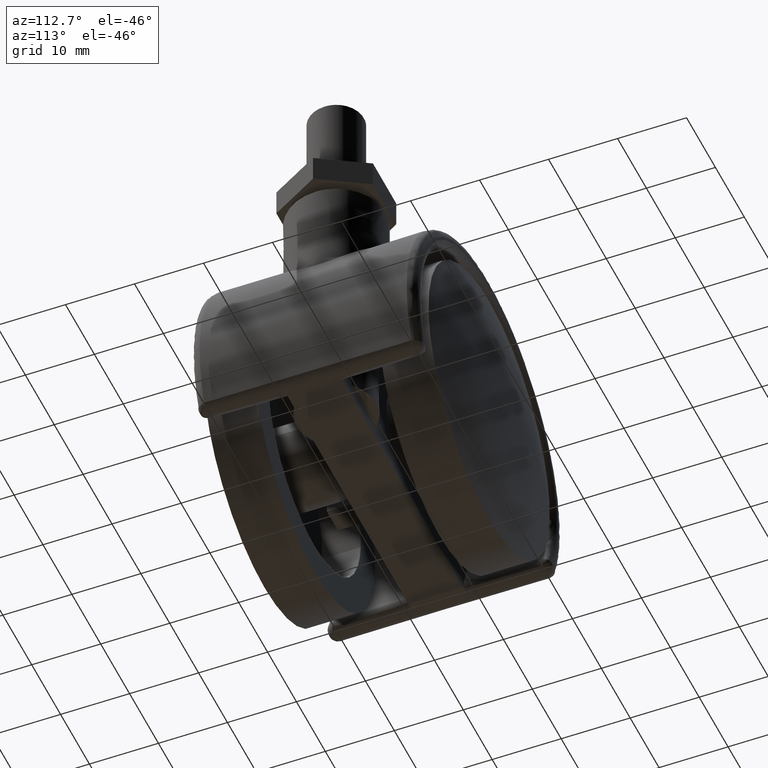
[diagram: clean part render]
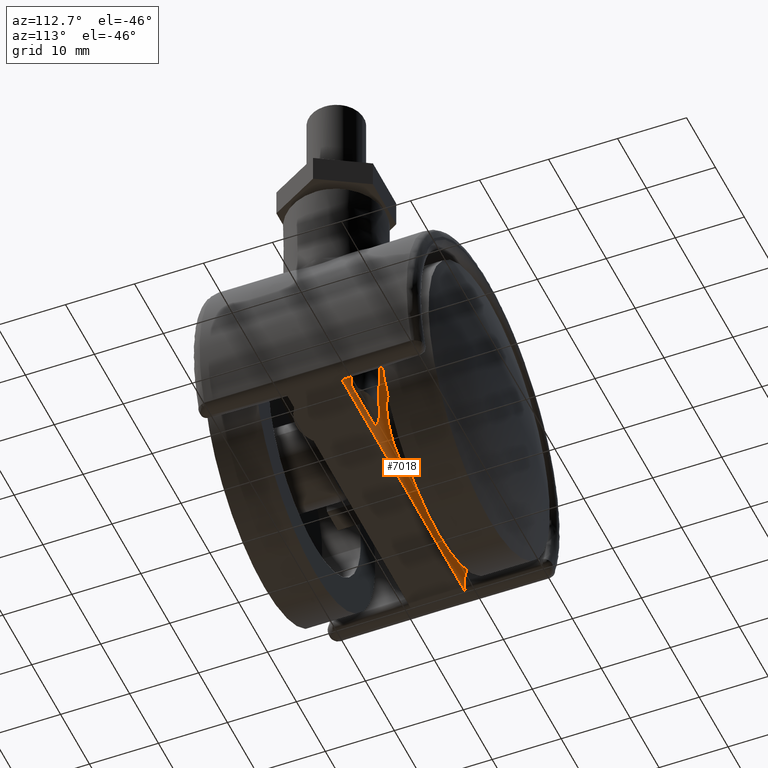
[diagram: same view with one face highlighted and labeled with its STEP entity id]
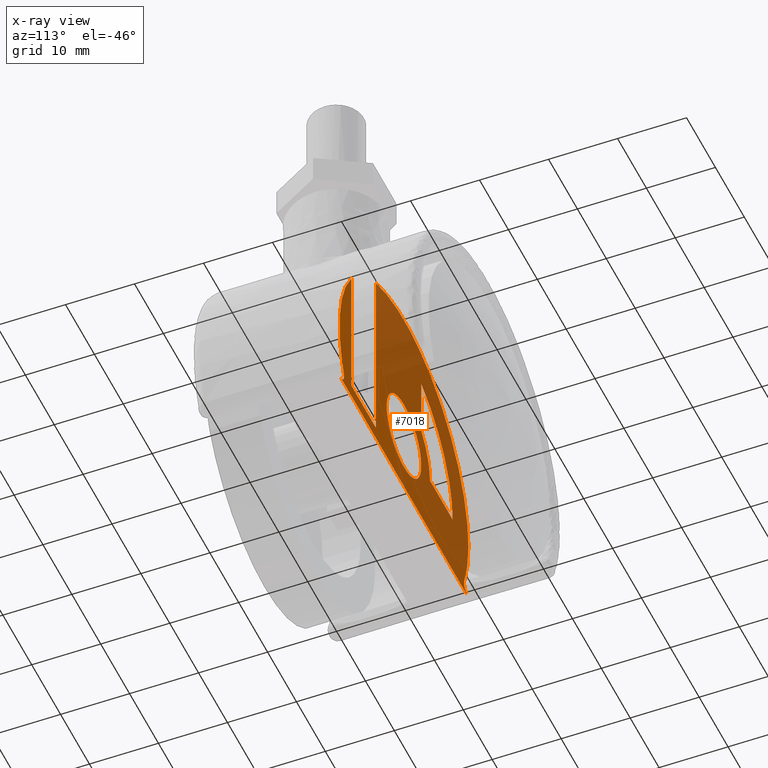
[diagram: x-ray of the same camera — body ghosted, the highlighted face saturated]
A machine part, auxiliary view. The second image highlights one B-rep face of the part: STEP entity #7018.
The next image is the same camera in x-ray: the body ghosted, the highlighted face saturated — about 69% of this face is hidden behind the body in this view.
In plain terms, the highlighted face is a freeform B-spline surface patch.
Its self-contained STEP definition (entity closure, byte-faithful):
#2822=CARTESIAN_POINT('',(-5.958057158173149,3.949999999999999,-0.708205408014997));
#2823=VERTEX_POINT('',#2822);
#2829=CARTESIAN_POINT('',(0.0,3.950000000000000,6.0));
#2830=VERTEX_POINT('',#2829);
#2831=CARTESIAN_POINT('',(-5.958057158173149,3.949999999999999,-0.708205408014997));
#2832=CARTESIAN_POINT('',(-6.0,3.950000000000001,-0.355344717986694));
#2833=CARTESIAN_POINT('',(-6.0,3.950000000000000,0.0));
#2834=CARTESIAN_POINT('',(-6.0,3.950000000000000,6.0));
#2835=CARTESIAN_POINT('',(0.0,3.950000000000000,6.0));
#2843=(BOUNDED_CURVE()B_SPLINE_CURVE(2,(#2831,#2832,#2833,#2834,#2835),.UNSPECIFIED.,.F.,.U.)B_SPLINE_CURVE_WITH_KNOTS((3,2,3),(0.229562473511421,0.250000000000000,0.500000000000000),.UNSPECIFIED.)CURVE()GEOMETRIC_REPRESENTATION_ITEM()RATIONAL_B_SPLINE_CURVE((0.956026754179608,0.976055948328699,1.0,0.707106781186548,1.0))REPRESENTATION_ITEM(''));
#2844=EDGE_CURVE('',#2823,#2830,#2843,.T.);
#2846=CARTESIAN_POINT('',(5.988809225545692,3.950000000000000,0.366284124646463));
#2847=VERTEX_POINT('',#2846);
#2848=CARTESIAN_POINT('',(0.0,3.950000000000000,6.0));
#2849=CARTESIAN_POINT('',(5.644243117297799,3.950000000000001,6.000000000000002));
#2850=CARTESIAN_POINT('',(5.988809225545692,3.950000000000000,0.366284124646463));
#2858=(BOUNDED_CURVE()B_SPLINE_CURVE(2,(#2848,#2849,#2850),.UNSPECIFIED.,.F.,.U.)B_SPLINE_CURVE_WITH_KNOTS((3,3),(0.500000000000000,0.739333167165867),.UNSPECIFIED.)CURVE()GEOMETRIC_REPRESENTATION_ITEM()RATIONAL_B_SPLINE_CURVE((1.0,0.719603753199885,0.976072480864519))REPRESENTATION_ITEM(''));
#2859=EDGE_CURVE('',#2830,#2847,#2858,.T.);
#2933=CARTESIAN_POINT('',(0.0,3.950000000000000,-6.0));
#2934=VERTEX_POINT('',#2933);
#2935=CARTESIAN_POINT('',(5.988809225545692,3.950000000000000,0.366284124646463));
#2936=CARTESIAN_POINT('',(6.0,3.950000000000001,0.183313013539051));
#2937=CARTESIAN_POINT('',(6.0,3.950000000000000,0.0));
#2938=CARTESIAN_POINT('',(6.0,3.950000000000000,-6.0));
#2939=CARTESIAN_POINT('',(0.0,3.950000000000000,-6.0));
#2947=(BOUNDED_CURVE()B_SPLINE_CURVE(2,(#2935,#2936,#2937,#2938,#2939),.UNSPECIFIED.,.F.,.U.)B_SPLINE_CURVE_WITH_KNOTS((3,2,3),(0.739333167165867,0.750000000000000,1.0),.UNSPECIFIED.)CURVE()GEOMETRIC_REPRESENTATION_ITEM()RATIONAL_B_SPLINE_CURVE((0.976072480864519,0.987503027986663,1.0,0.707106781186548,1.0))REPRESENTATION_ITEM(''));
#2948=EDGE_CURVE('',#2847,#2934,#2947,.T.);
#2950=CARTESIAN_POINT('',(0.0,3.950000000000000,-6.0));
#2951=CARTESIAN_POINT('',(-5.329047155574097,3.950000000000000,-6.000000000000001));
#2952=CARTESIAN_POINT('',(-5.958057158173149,3.949999999999999,-0.708205408014997));
#2960=(BOUNDED_CURVE()B_SPLINE_CURVE(2,(#2950,#2951,#2952),.UNSPECIFIED.,.F.,.U.)B_SPLINE_CURVE_WITH_KNOTS((3,3),(0.0,0.229562473511421),.UNSPECIFIED.)CURVE()GEOMETRIC_REPRESENTATION_ITEM()RATIONAL_B_SPLINE_CURVE((1.0,0.731050832857848,0.956026754179608))REPRESENTATION_ITEM(''));
#2961=EDGE_CURVE('',#2934,#2823,#2960,.T.);
#3611=CARTESIAN_POINT('',(-6.0,3.950000000000000,6.708206615780580));
#3612=VERTEX_POINT('',#3611);
#3618=CARTESIAN_POINT('',(-9.000002000000000,3.950000000000000,0.0));
#3619=VERTEX_POINT('',#3618);
#3620=CARTESIAN_POINT('',(-6.0,3.950000000000000,6.708206615780580));
#3621=CARTESIAN_POINT('',(-9.000001999999997,3.950000000000001,4.024924327239344));
#3622=CARTESIAN_POINT('',(-9.000001999999997,3.950000000000000,0.0));
#3630=(BOUNDED_CURVE()B_SPLINE_CURVE(2,(#3620,#3621,#3622),.UNSPECIFIED.,.F.,.U.)CURVE()GEOMETRIC_REPRESENTATION_ITEM()QUASI_UNIFORM_CURVE()RATIONAL_B_SPLINE_CURVE((1.0,0.912870888603246,1.0))REPRESENTATION_ITEM(''));
#3631=EDGE_CURVE('',#3612,#3619,#3630,.T.);
#4051=CARTESIAN_POINT('',(-6.0,3.950000000000000,15.750368339565901));
#4052=VERTEX_POINT('',#4051);
#4053=CARTESIAN_POINT('',(-6.0,3.950000000000000,6.708206615780580));
#4054=CARTESIAN_POINT('',(-6.0,3.950000000000000,15.750368339565901));
#4055=QUASI_UNIFORM_CURVE('',1,(#4053,#4054),.UNSPECIFIED.,.F.,.U.);
#4056=EDGE_CURVE('',#3612,#4052,#4055,.T.);
#4104=CARTESIAN_POINT('',(-16.854497999999900,3.950000000000000,0.0));
#4105=VERTEX_POINT('',#4104);
#4111=CARTESIAN_POINT('',(-6.000000000000007,3.950000000000000,15.750368339565920));
#4112=CARTESIAN_POINT('',(-16.854497999999904,3.949999999999999,11.615418185010080));
#4113=CARTESIAN_POINT('',(-16.854497999999900,3.950000000000000,0.0));
#4121=(BOUNDED_CURVE()B_SPLINE_CURVE(2,(#4111,#4112,#4113),.UNSPECIFIED.,.F.,.U.)CURVE()GEOMETRIC_REPRESENTATION_ITEM()QUASI_UNIFORM_CURVE()RATIONAL_B_SPLINE_CURVE((1.0,0.823403928006376,1.0))REPRESENTATION_ITEM(''));
#4122=EDGE_CURVE('',#4052,#4105,#4121,.T.);
#4138=CARTESIAN_POINT('',(-16.854497999999900,3.950000000000000,0.0));
#4139=CARTESIAN_POINT('',(-9.000002000000000,3.950000000000000,0.0));
#4140=QUASI_UNIFORM_CURVE('',1,(#4138,#4139),.UNSPECIFIED.,.F.,.U.);
#4141=EDGE_CURVE('',#4105,#3619,#4140,.T.);
#4293=CARTESIAN_POINT('',(9.781586002324699,3.950000000000000,-7.700000000000000));
#4294=VERTEX_POINT('',#4293);
#4295=CARTESIAN_POINT('',(18.218409997675501,3.950000000000000,-7.700000000000000));
#4296=VERTEX_POINT('',#4295);
#4312=CARTESIAN_POINT('',(9.781586002324699,3.950000000000000,20.056242804404700));
#4313=VERTEX_POINT('',#4312);
#4314=CARTESIAN_POINT('',(9.781586002324699,3.950000000000000,-7.700000000000000));
#4315=CARTESIAN_POINT('',(9.781586002324699,3.950000000000000,20.056242804404700));
#4316=QUASI_UNIFORM_CURVE('',1,(#4314,#4315),.UNSPECIFIED.,.F.,.U.);
#4317=EDGE_CURVE('',#4294,#4313,#4316,.T.);
#4319=CARTESIAN_POINT('',(18.218409997675501,3.950000000000000,12.884946150710499));
#4320=VERTEX_POINT('',#4319);
#4358=CARTESIAN_POINT('',(18.218409997675501,3.950000000000000,12.884946150710499));
#4359=CARTESIAN_POINT('',(18.218409997675501,3.950000000000000,-7.700000000000000));
#4360=QUASI_UNIFORM_CURVE('',1,(#4358,#4359),.UNSPECIFIED.,.F.,.U.);
#4361=EDGE_CURVE('',#4320,#4296,#4360,.T.);
#4372=CARTESIAN_POINT('',(18.218409997675501,3.950000000000000,-7.700000000000000));
#4373=CARTESIAN_POINT('',(9.781586002324699,3.950000000000000,-7.700000000000000));
#4374=QUASI_UNIFORM_CURVE('',1,(#4372,#4373),.UNSPECIFIED.,.F.,.U.);
#4375=EDGE_CURVE('',#4296,#4294,#4374,.T.);
#6000=CARTESIAN_POINT('',(20.854905771677899,3.950000000000000,-7.937581836084940));
#6001=VERTEX_POINT('',#6000);
#6002=CARTESIAN_POINT('',(22.069919937677849,3.950000000000000,-9.700000000000001));
#6003=VERTEX_POINT('',#6002);
#6004=CARTESIAN_POINT('',(20.854905771677899,3.950000000000000,-7.937581836084940));
#6005=CARTESIAN_POINT('',(20.817295773708409,3.950000000000002,-8.036396938709633));
#6006=CARTESIAN_POINT('',(20.792334314585879,3.950000000000001,-8.137710196464564));
#6007=CARTESIAN_POINT('',(20.773213468999849,3.950000000000001,-8.293298647881816));
#6008=CARTESIAN_POINT('',(20.769931934246120,3.950000000000000,-8.346085964838823));
#6009=CARTESIAN_POINT('',(20.769829931945949,3.950000000000000,-8.451395772120284));
#6010=CARTESIAN_POINT('',(20.776102713942969,3.950000000000001,-8.555791795353558));
#6011=CARTESIAN_POINT('',(20.794748076145989,3.950000000000000,-8.658414289334701));
#6012=CARTESIAN_POINT('',(20.819664711924549,3.950000000000000,-8.760137836859313));
#6013=CARTESIAN_POINT('',(20.835401237760401,3.950000000000000,-8.810865724995377));
#6014=CARTESIAN_POINT('',(20.891106823224661,3.950000000000000,-8.958122784784623));
#6015=CARTESIAN_POINT('',(20.939435639778299,3.950000000000000,-9.050471301139710));
#6016=CARTESIAN_POINT('',(21.028746354318610,3.950000000000001,-9.180244259857147));
#6017=CARTESIAN_POINT('',(21.061449574395890,3.950000000000000,-9.222063876477160));
#6018=CARTESIAN_POINT('',(21.130803722905210,3.950000000000000,-9.300474317628172));
#6019=CARTESIAN_POINT('',(21.204487167408860,3.950000000000000,-9.374271871304277));
#6020=CARTESIAN_POINT('',(21.286726920013081,3.950000000000000,-9.438952634047093));
#6021=CARTESIAN_POINT('',(21.373382974066988,3.950000000000000,-9.498927804548249));
#6022=CARTESIAN_POINT('',(21.418568247812310,3.950000000000000,-9.526274933120623));
#6023=CARTESIAN_POINT('',(21.557263548188310,3.950000000000000,-9.599213454397551));
#6024=CARTESIAN_POINT('',(21.654901682674151,3.950000000000000,-9.636501173925437));
#6025=CARTESIAN_POINT('',(21.860040935317521,3.949999999999999,-9.687291064356103));
#6026=CARTESIAN_POINT('',(21.964189527046258,3.950000000000000,-9.700000000000001));
#6027=CARTESIAN_POINT('',(22.069919937677849,3.950000000000000,-9.700000000000001));
#6028=B_SPLINE_CURVE_WITH_KNOTS('',3,(#6004,#6005,#6006,#6007,#6008,#6009,#6010,#6011,#6012,#6013,#6014,#6015,#6016,#6017,#6018,#6019,#6020,#6021,#6022,#6023,#6024,#6025,#6026,#6027),.UNSPECIFIED.,.F.,.U.,(4,2,2,1,2,2,2,2,1,2,2,2,4),(0.0,0.125000000000000,0.187500000000000,0.250000000000000,0.312500000000001,0.375000000000001,0.500000000000001,0.562500000000001,0.625000000000001,0.687500000000001,0.750000000000000,0.875000000000000,1.0),.UNSPECIFIED.);
#6029=EDGE_CURVE('',#6001,#6003,#6028,.T.);
#6491=CARTESIAN_POINT('',(-22.069919937677799,3.950000000000000,-9.700000000000001));
#6492=VERTEX_POINT('',#6491);
#6512=CARTESIAN_POINT('',(-20.854905771677899,3.950000000000000,-7.937581836084900));
#6513=VERTEX_POINT('',#6512);
#6521=CARTESIAN_POINT('',(-22.069919937677799,3.950000000000000,-9.700000000000001));
#6522=CARTESIAN_POINT('',(-21.964189485856089,3.950000000000001,-9.699999999999996));
#6523=CARTESIAN_POINT('',(-21.860623377240369,3.950000000000001,-9.687291132029888));
#6524=CARTESIAN_POINT('',(-21.708409226373028,3.950000000000002,-9.649819264281170));
#6525=CARTESIAN_POINT('',(-21.657907187093269,3.950000000000000,-9.634110315934976));
#6526=CARTESIAN_POINT('',(-21.559447446508120,3.950000000000000,-9.596748159057045));
#6527=CARTESIAN_POINT('',(-21.464109125605159,3.950000000000000,-9.553753594498206));
#6528=CARTESIAN_POINT('',(-21.374829044694831,3.950000000000000,-9.499827312662715));
#6529=CARTESIAN_POINT('',(-21.288619686295188,3.950000000000000,-9.440360103039216));
#6530=CARTESIAN_POINT('',(-21.246805912528121,3.950000000000000,-9.407610423918428));
#6531=CARTESIAN_POINT('',(-21.128989342947129,3.950000000000001,-9.303172273270672));
#6532=CARTESIAN_POINT('',(-21.059867963442510,3.950000000000000,-9.225158624466326));
#6533=CARTESIAN_POINT('',(-20.970345403814640,3.950000000000000,-9.095533565788680));
#6534=CARTESIAN_POINT('',(-20.942891122368639,3.950000000000000,-9.050094636246673));
#6535=CARTESIAN_POINT('',(-20.894273904886361,3.950000000000000,-8.957386947213418));
#6536=CARTESIAN_POINT('',(-20.851508178930569,3.950000000000000,-8.862274063029274));
#6537=CARTESIAN_POINT('',(-20.820307057435691,3.950000000000000,-8.762407667634221));
#6538=CARTESIAN_POINT('',(-20.795074894163019,3.950000000000000,-8.660087793616320));
#6539=CARTESIAN_POINT('',(-20.785586917625679,3.950000000000001,-8.608129145465762));
#6540=CARTESIAN_POINT('',(-20.766748790347460,3.950000000000000,-8.452559804023455));
#6541=CARTESIAN_POINT('',(-20.766627949986020,3.950000000000001,-8.348046547536612));
#6542=CARTESIAN_POINT('',(-20.792127006648290,3.950000000000000,-8.138255112925945));
#6543=CARTESIAN_POINT('',(-20.817295756358341,3.950000000000000,-8.036396984294685));
#6544=CARTESIAN_POINT('',(-20.854905771677849,3.950000000000000,-7.937581836084900));
#6545=B_SPLINE_CURVE_WITH_KNOTS('',3,(#6521,#6522,#6523,#6524,#6525,#6526,#6527,#6528,#6529,#6530,#6531,#6532,#6533,#6534,#6535,#6536,#6537,#6538,#6539,#6540,#6541,#6542,#6543,#6544),.UNSPECIFIED.,.F.,.U.,(4,2,2,1,2,2,2,2,1,2,2,2,4),(0.0,0.125000000000000,0.187500000000000,0.249999999999999,0.312499999999999,0.374999999999999,0.499999999999998,0.562499999999998,0.624999999999998,0.687499999999998,0.749999999999999,0.874999999999999,1.0),.UNSPECIFIED.);
#6546=EDGE_CURVE('',#6492,#6513,#6545,.T.);
#6777=CARTESIAN_POINT('',(-22.069919937677799,3.950000000000000,-9.700000000000001));
#6778=CARTESIAN_POINT('',(22.069919937677849,3.950000000000000,-9.700000000000001));
#6779=QUASI_UNIFORM_CURVE('',1,(#6777,#6778),.UNSPECIFIED.,.F.,.U.);
#6780=EDGE_CURVE('',#6492,#6003,#6779,.T.);
#6939=CARTESIAN_POINT('',(-20.854905771677888,3.950000000000000,-7.937581836084907));
#6940=CARTESIAN_POINT('',(-26.251112233321770,3.950000000000000,6.240209285450152));
#6941=CARTESIAN_POINT('',(-15.052181143582070,3.950000000000000,16.473133975382499));
#6942=CARTESIAN_POINT('',(-3.853250053842363,3.950000000000000,26.706058665314846));
#6943=CARTESIAN_POINT('',(9.781586002324689,3.950000000000000,20.056242804404679));
#6951=(BOUNDED_CURVE()B_SPLINE_CURVE(2,(#6939,#6940,#6941,#6942,#6943),.UNSPECIFIED.,.F.,.U.)B_SPLINE_CURVE_WITH_KNOTS((3,2,3),(0.0,0.500000000000000,1.0),.UNSPECIFIED.)CURVE()GEOMETRIC_REPRESENTATION_ITEM()RATIONAL_B_SPLINE_CURVE((1.0,0.826991858864359,1.0,0.826991858864359,1.0))REPRESENTATION_ITEM(''));
#6952=EDGE_CURVE('',#6513,#4313,#6951,.T.);
#6957=CARTESIAN_POINT('',(18.218409997675501,3.950000000000000,12.884946150710499));
#6958=CARTESIAN_POINT('',(25.084915861044113,3.950000000000000,3.176188534878655));
#6959=CARTESIAN_POINT('',(20.854905771677881,3.950000000000000,-7.937581836084933));
#6967=(BOUNDED_CURVE()B_SPLINE_CURVE(2,(#6957,#6958,#6959),.UNSPECIFIED.,.F.,.U.)CURVE()GEOMETRIC_REPRESENTATION_ITEM()QUASI_UNIFORM_CURVE()RATIONAL_B_SPLINE_CURVE((1.0,0.882508325932485,1.0))REPRESENTATION_ITEM(''));
#6968=EDGE_CURVE('',#4320,#6001,#6967,.T.);
#6991=CARTESIAN_POINT('',(-24.529764030787689,3.950000000000000,23.906834199506079));
#6992=CARTESIAN_POINT('',(-24.529764030787689,3.950000000000000,-11.298802045462260));
#6993=CARTESIAN_POINT('',(24.542697063049481,3.950000000000000,23.906834199506079));
#6994=CARTESIAN_POINT('',(24.542697063049481,3.950000000000000,-11.298802045462260));
#6995=B_SPLINE_SURFACE_WITH_KNOTS('',1,1,((#6991,#6993),(#6992,#6994)),.UNSPECIFIED.,.F.,.F.,.U.,(2,2),(2,2),(0.0,35.205636244968339),(0.0,49.072461093837163),.UNSPECIFIED.);
#6996=ORIENTED_EDGE('',*,*,#4317,.F.);
#6997=ORIENTED_EDGE('',*,*,#4375,.F.);
#6998=ORIENTED_EDGE('',*,*,#4361,.F.);
#6999=ORIENTED_EDGE('',*,*,#6968,.T.);
#7000=ORIENTED_EDGE('',*,*,#6029,.T.);
#7001=ORIENTED_EDGE('',*,*,#6780,.F.);
#7002=ORIENTED_EDGE('',*,*,#6546,.T.);
#7003=ORIENTED_EDGE('',*,*,#6952,.T.);
#7004=EDGE_LOOP('',(#6996,#6997,#6998,#6999,#7000,#7001,#7002,#7003));
#7005=FACE_OUTER_BOUND('',#7004,.T.);
#7006=ORIENTED_EDGE('',*,*,#3631,.F.);
#7007=ORIENTED_EDGE('',*,*,#4056,.T.);
#7008=ORIENTED_EDGE('',*,*,#4122,.T.);
#7009=ORIENTED_EDGE('',*,*,#4141,.T.);
#7010=EDGE_LOOP('',(#7006,#7007,#7008,#7009));
#7011=FACE_BOUND('',#7010,.T.);
#7012=ORIENTED_EDGE('',*,*,#2859,.F.);
#7013=ORIENTED_EDGE('',*,*,#2844,.F.);
#7014=ORIENTED_EDGE('',*,*,#2961,.F.);
#7015=ORIENTED_EDGE('',*,*,#2948,.F.);
#7016=EDGE_LOOP('',(#7012,#7013,#7014,#7015));
#7017=FACE_BOUND('',#7016,.T.);
#7018=ADVANCED_FACE('',(#7005,#7011,#7017),#6995,.F.);